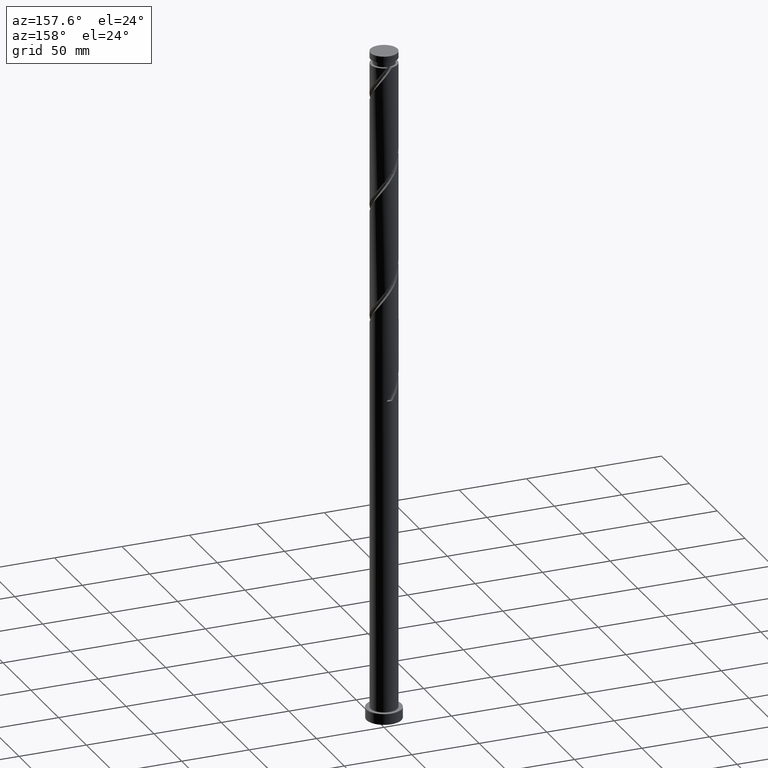
[diagram: clean part render]
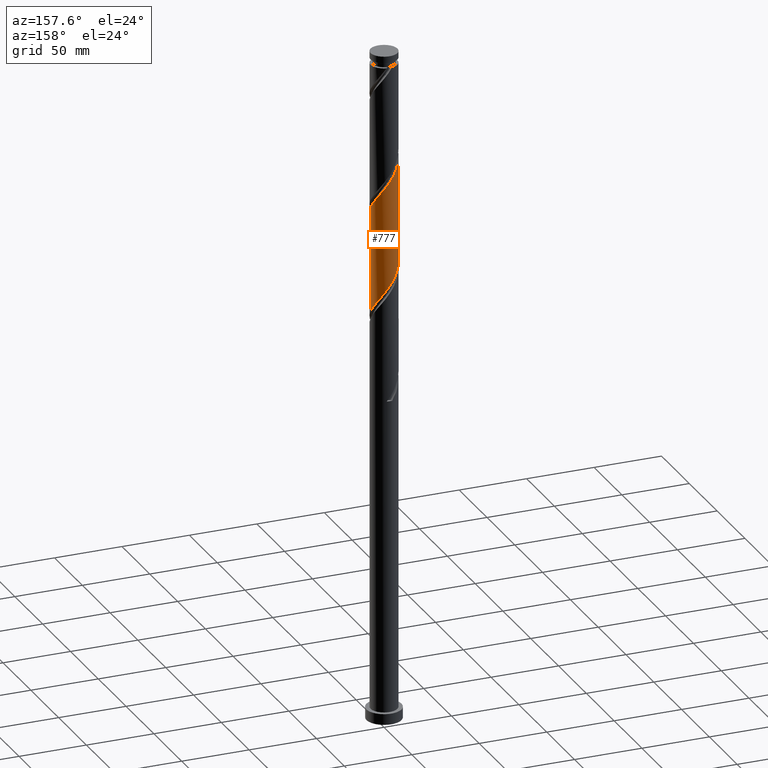
[diagram: same view with one face highlighted and labeled with its STEP entity id]
A machine part, auxiliary view. The second image highlights one B-rep face of the part: STEP entity #777.
In plain terms, the highlighted cylindrical surface (edge-blend (fillet) strip) has radius 10 mm, axis along (-0, -0, -1).
Its self-contained STEP definition (entity closure, byte-faithful):
#6 = ORIENTED_EDGE ( 'NONE', *, *, #1045, .T. ) ;
#14 = CARTESIAN_POINT ( 'NONE',  ( 2.878547858533179848, 9.627253911664571007, 401.3410913428222671 ) ) ;
#25 = CARTESIAN_POINT ( 'NONE',  ( -9.627253911664572783, 2.878547858533178072, 422.1744246761556951 ) ) ;
#37 = CARTESIAN_POINT ( 'NONE',  ( -9.999999999999996447, 0.01992653374259092253, 347.9820180996350700 ) ) ;
#50 = CARTESIAN_POINT ( 'NONE',  ( -8.880692098604958673, 4.701421434343251882, 419.5702580094890095 ) ) ;
#63 = CARTESIAN_POINT ( 'NONE',  ( -4.701421434343242112, 8.880692098604946239, 333.6327580094888958 ) ) ;
#102 = CARTESIAN_POINT ( 'NONE',  ( -0.9450533028279046732, 10.00384575592509329, 328.4244246761555246 ) ) ;
#110 = CARTESIAN_POINT ( 'NONE',  ( 9.999999999999998224, 8.834553925947433027E-15, 306.3417049874857980 ) ) ;
#180 = CARTESIAN_POINT ( 'NONE',  ( -10.00000000000001599, -2.997038547030246099E-15, 426.0279776981586224 ) ) ;
#187 = EDGE_CURVE ( 'NONE', #1579, #1929, #592, .T. ) ;
#215 = CARTESIAN_POINT ( 'NONE',  ( -5.522521727681131587, 8.336771183575200084, 334.9348413428221534 ) ) ;
#244 = CARTESIAN_POINT ( 'NONE',  ( 1.024759121313038035, 9.995995418006760502, 325.8202580094888390 ) ) ;
#295 = VERTEX_POINT ( 'NONE', #1896 ) ;
#307 =( BOUNDED_CURVE ( )  B_SPLINE_CURVE ( 2, ( #1123, #1789, #1148, #844, #1625, #1498, #337, #826, #646, #1314, #513, #815, #659, #992, #981, #14, #1487, #1304, #673, #1325, #1477, #1140, #1283, #1651, #359, #970, #1467, #1958, #1803, #50, #1933, #25, #684, #491, #1775 ),
 .UNSPECIFIED., .F., .T. ) 
 B_SPLINE_CURVE_WITH_KNOTS ( ( 3, 2, 2, 2, 2, 2, 2, 2, 2, 2, 2, 2, 2, 2, 2, 2, 2, 3 ),
 ( 0.4295286902180874833, 0.4296875000000000000, 0.4375000000000000000, 0.4453125000000000000, 0.4531250000000000000, 0.4609375000000000000, 0.4687500000000000000, 0.4765625000000000000, 0.4843750000000000000, 0.4921875000000000000, 0.5000000000000000000, 0.5078125000000000000, 0.5156250000000000000, 0.5234375000000000000, 0.5312500000000000000, 0.5390625000000000000, 0.5468750000000000000, 0.5545286902180873723 ),
 .UNSPECIFIED. ) 
 CURVE ( )  GEOMETRIC_REPRESENTATION_ITEM ( )  RATIONAL_B_SPLINE_CURVE ( ( 0.9089165573359372363, 0.9090019243628418844, 0.9090909090909334855, 0.9047133878838395926, 0.9090909090909334855, 0.9047133878838395926, 0.9090909090909334855, 0.9047133878838395926, 0.9090909090909334855, 0.9047133878838395926, 0.9090909090909334855, 0.9047133878838395926, 0.9090909090909334855, 0.9047133878838395926, 0.9090909090909334855, 0.9047133878838395926, 0.9090909090909334855, 0.9047133878838395926, 0.9090909090909334855, 0.9047133878838395926, 0.9090909090909334855, 0.9047133878838395926, 0.9090909090909334855, 0.9047133878838395926, 0.9090909090909334855, 0.9047133878838395926, 0.9090909090909334855, 0.9047133878838395926, 0.9090909090909334855, 0.9047133878838395926, 0.9090909090909334855, 0.9047133878838395926, 0.9090909090909334855, 0.9048023726119313048, 0.9089165573359370143 ) ) 
 REPRESENTATION_ITEM ( '' )  );
#337 = CARTESIAN_POINT ( 'NONE',  ( 9.223470908937407842, 3.863623220758685139, 389.6223413428221534 ) ) ;
#338 = CARTESIAN_POINT ( 'NONE',  ( 0.000000000000000000, 0.000000000000000000, 500.0000000000000000 ) ) ;
#359 = CARTESIAN_POINT ( 'NONE',  ( -5.588794693675229297, 8.292489003426412708, 413.0598413428222102 ) ) ;
#374 = AXIS2_PLACEMENT_3D ( 'NONE', #338, #1012, #1021 ) ;
#423 = CARTESIAN_POINT ( 'NONE',  ( 10.00000000000000178, 0.9647981492898172196, 307.6176850929016950 ) ) ;
#433 = CARTESIAN_POINT ( 'NONE',  ( -2.878547858533169634, 9.627253911664558572, 331.0285913428221534 ) ) ;
#452 = VERTEX_POINT ( 'NONE', #180 ) ;
#491 = CARTESIAN_POINT ( 'NONE',  ( -10.00000000000002309, 0.9647981492897956812, 424.7519975927426685 ) ) ;
#493 = CARTESIAN_POINT ( 'NONE',  ( -9.999999999999996447, -7.861634696127906080E-15, 348.0083716541523131 ) ) ;
#513 = CARTESIAN_POINT ( 'NONE',  ( 7.042831395995150956, 7.099191920746005025, 394.8306746761555246 ) ) ;
#527 = CARTESIAN_POINT ( 'NONE',  ( -9.223470908937390078, 3.863623220758681587, 342.7473413428221534 ) ) ;
#570 = CARTESIAN_POINT ( 'NONE',  ( 2.955190627113456259, 9.604004581993244472, 323.2160913428222102 ) ) ;
#580 = CARTESIAN_POINT ( 'NONE',  ( 5.588794693675227521, 8.292489003426394945, 319.3098413428222102 ) ) ;
#592 =( BOUNDED_CURVE ( )  B_SPLINE_CURVE ( 2, ( #1031, #37, #1983, #1500, #699, #1340, #527, #1508, #1175, #1827, #1013, #1671, #215, #63, #709, #433, #2039, #102, #911, #244, #1702, #570, #1722, #883, #580, #2057, #737, #1228, #1382, #1537, #1888, #1220, #746, #423, #110 ),
 .UNSPECIFIED., .F., .T. ) 
 B_SPLINE_CURVE_WITH_KNOTS ( ( 3, 2, 2, 2, 2, 2, 2, 2, 2, 2, 2, 2, 2, 2, 2, 2, 2, 3 ),
 ( 0.6795286902180870392, 0.6796875000000000000, 0.6875000000000000000, 0.6953125000000000000, 0.7031250000000000000, 0.7109375000000000000, 0.7187500000000000000, 0.7265625000000000000, 0.7343750000000000000, 0.7421875000000000000, 0.7500000000000000000, 0.7578125000000000000, 0.7656250000000000000, 0.7734375000000000000, 0.7812500000000000000, 0.7890625000000000000, 0.7968750000000000000, 0.8045286902180871502 ),
 .UNSPECIFIED. ) 
 CURVE ( )  GEOMETRIC_REPRESENTATION_ITEM ( )  RATIONAL_B_SPLINE_CURVE ( ( 0.9089165573359301309, 0.9090019243628350010, 0.9090909090909268242, 0.9047133878838330423, 0.9090909090909268242, 0.9047133878838330423, 0.9090909090909268242, 0.9047133878838330423, 0.9090909090909268242, 0.9047133878838330423, 0.9090909090909268242, 0.9047133878838330423, 0.9090909090909268242, 0.9047133878838330423, 0.9090909090909268242, 0.9047133878838330423, 0.9090909090909268242, 0.9047133878838330423, 0.9090909090909268242, 0.9047133878838330423, 0.9090909090909268242, 0.9047133878838330423, 0.9090909090909268242, 0.9047133878838330423, 0.9090909090909268242, 0.9047133878838330423, 0.9090909090909268242, 0.9047133878838330423, 0.9090909090909268242, 0.9047133878838330423, 0.9090909090909268242, 0.9047133878838330423, 0.9090909090909268242, 0.9048023726119248655, 0.9089165573359302419 ) ) 
 REPRESENTATION_ITEM ( '' )  );
#607 = CARTESIAN_POINT ( 'NONE',  ( 10.00000000000000178, 1.224646799147353454E-15, 500.0000000000000000 ) ) ;
#646 = CARTESIAN_POINT ( 'NONE',  ( 8.292489003426409155, 5.588794693675231073, 392.2265080094888958 ) ) ;
#659 = CARTESIAN_POINT ( 'NONE',  ( 5.522521727681144021, 8.336771183575212518, 397.4348413428222102 ) ) ;
#673 = CARTESIAN_POINT ( 'NONE',  ( -0.03985290924256019995, 9.999920586965943770, 405.2473413428222102 ) ) ;
#684 = CARTESIAN_POINT ( 'NONE',  ( -9.815549833794840140, 1.911800580680543371, 423.4765080094888958 ) ) ;
#699 = CARTESIAN_POINT ( 'NONE',  ( -9.800000000000002487, 1.989974874213248590, 345.3515080094886684 ) ) ;
#709 = CARTESIAN_POINT ( 'NONE',  ( -3.789984646438206539, 9.253973005134753294, 332.3306746761555246 ) ) ;
#737 = CARTESIAN_POINT ( 'NONE',  ( 7.099191920745997031, 7.042831395995134969, 316.7056746761555814 ) ) ;
#746 = CARTESIAN_POINT ( 'NONE',  ( 9.815549833794825929, 1.911800580680539596, 308.8931746761555246 ) ) ;
#777 = ADVANCED_FACE ( 'NONE', ( #1826 ), #1326, .T. ) ;
#815 = CARTESIAN_POINT ( 'NONE',  ( 6.343622021019031720, 7.792850268545469028, 396.1327580094888390 ) ) ;
#826 = CARTESIAN_POINT ( 'NONE',  ( 8.842937235881560554, 4.772055814403907803, 390.9244246761555814 ) ) ;
#844 = CARTESIAN_POINT ( 'NONE',  ( 9.995995418006774713, 1.024759121313039811, 385.7160913428223239 ) ) ;
#847 = VECTOR ( 'NONE', #1740, 1000.000000000000000 ) ;
#883 = CARTESIAN_POINT ( 'NONE',  ( 4.772055814403904250, 8.842937235881546343, 320.6119246761556383 ) ) ;
#911 = CARTESIAN_POINT ( 'NONE',  ( 0.03985290924256662537, 9.999920586965922453, 327.1223413428222102 ) ) ;
#914 = CARTESIAN_POINT ( 'NONE',  ( 9.999999999999998224, 8.834553925947433027E-15, 306.3417049874857412 ) ) ;
#951 = ORIENTED_EDGE ( 'NONE', *, *, #1745, .F. ) ;
#970 = CARTESIAN_POINT ( 'NONE',  ( -6.405533572946549903, 7.742040770971267527, 414.3619246761556383 ) ) ;
#974 = LINE ( 'NONE', #1298, #1563 ) ;
#981 = CARTESIAN_POINT ( 'NONE',  ( 3.789984646438214089, 9.253973005134763952, 400.0390080094888958 ) ) ;
#992 = CARTESIAN_POINT ( 'NONE',  ( 4.701421434343258099, 8.880692098604956897, 398.7369246761554678 ) ) ;
#1012 = DIRECTION ( 'NONE',  ( -0.000000000000000000, -0.000000000000000000, -1.000000000000000000 ) ) ;
#1013 = CARTESIAN_POINT ( 'NONE',  ( -7.042831395995134969, 7.099191920745997919, 337.5390080094888390 ) ) ;
#1021 = DIRECTION ( 'NONE',  ( -1.000000000000000000, 0.000000000000000000, 0.000000000000000000 ) ) ;
#1031 = CARTESIAN_POINT ( 'NONE',  ( -9.999999999999996447, -7.861634696127906080E-15, 348.0083716541523131 ) ) ;
#1045 = EDGE_CURVE ( 'NONE', #295, #1929, #1293, .T. ) ;
#1123 = CARTESIAN_POINT ( 'NONE',  ( 10.00000000000002132, 1.340839260406442326E-14, 384.3613110314921073 ) ) ;
#1140 = CARTESIAN_POINT ( 'NONE',  ( -2.955190627113461588, 9.604004581993260459, 409.1535913428222102 ) ) ;
#1148 = CARTESIAN_POINT ( 'NONE',  ( 9.999920586965943770, 0.03985290924256063017, 384.4140080094888390 ) ) ;
#1175 = CARTESIAN_POINT ( 'NONE',  ( -8.292489003426396721, 5.588794693675221303, 340.1431746761555814 ) ) ;
#1220 = CARTESIAN_POINT ( 'NONE',  ( 9.627253911664558572, 2.878547858533169634, 310.1952580094888958 ) ) ;
#1228 = CARTESIAN_POINT ( 'NONE',  ( 7.792850268545460146, 6.343622021019013957, 315.4035913428221534 ) ) ;
#1283 = CARTESIAN_POINT ( 'NONE',  ( -3.863623220758684251, 9.223470908937407842, 410.4556746761555246 ) ) ;
#1293 = LINE ( 'NONE', #607, #847 ) ;
#1298 = CARTESIAN_POINT ( 'NONE',  ( -10.00000000000000178, 0.000000000000000000, 500.0000000000000000 ) ) ;
#1304 = CARTESIAN_POINT ( 'NONE',  ( 0.9450533028279091141, 10.00384575592510927, 403.9452580094889527 ) ) ;
#1314 = CARTESIAN_POINT ( 'NONE',  ( 7.742040770971267527, 6.405533572946549903, 393.5285913428222102 ) ) ;
#1325 = CARTESIAN_POINT ( 'NONE',  ( -1.024759121313039367, 9.995995418006774713, 406.5494246761555814 ) ) ;
#1326 = CYLINDRICAL_SURFACE ( 'NONE', #374, 10.00000000000000178 ) ;
#1340 = CARTESIAN_POINT ( 'NONE',  ( -9.604004581993240919, 2.955190627113458923, 344.0494246761555814 ) ) ;
#1382 = CARTESIAN_POINT ( 'NONE',  ( 8.336771183575201860, 5.522521727681130699, 314.1015080094888958 ) ) ;
#1467 = CARTESIAN_POINT ( 'NONE',  ( -7.099191920746007689, 7.042831395995149180, 415.6640080094888958 ) ) ;
#1477 = CARTESIAN_POINT ( 'NONE',  ( -1.989974874213247480, 9.800000000000013145, 407.8515080094888390 ) ) ;
#1487 = CARTESIAN_POINT ( 'NONE',  ( 1.911800580680548922, 9.815549833794836587, 402.6431746761556383 ) ) ;
#1498 = CARTESIAN_POINT ( 'NONE',  ( 9.604004581993264011, 2.955190627113456703, 388.3202580094890095 ) ) ;
#1500 = CARTESIAN_POINT ( 'NONE',  ( -9.995995418006760502, 1.024759121313037813, 346.6535913428222102 ) ) ;
#1508 = CARTESIAN_POINT ( 'NONE',  ( -8.842937235881546343, 4.772055814403903362, 341.4452580094888390 ) ) ;
#1537 = CARTESIAN_POINT ( 'NONE',  ( 8.880692098604946239, 4.701421434343244776, 312.7994246761555246 ) ) ;
#1563 = VECTOR ( 'NONE', #1924, 1000.000000000000000 ) ;
#1579 = VERTEX_POINT ( 'NONE', #493 ) ;
#1625 = CARTESIAN_POINT ( 'NONE',  ( 9.800000000000013145, 1.989974874213247702, 387.0181746761555814 ) ) ;
#1651 = CARTESIAN_POINT ( 'NONE',  ( -4.772055814403910468, 8.842937235881558777, 411.7577580094888958 ) ) ;
#1671 = CARTESIAN_POINT ( 'NONE',  ( -6.343622021019019286, 7.792850268545455705, 336.2369246761556383 ) ) ;
#1688 = EDGE_CURVE ( 'NONE', #452, #1579, #974, .T. ) ;
#1702 = CARTESIAN_POINT ( 'NONE',  ( 1.989974874213250366, 9.800000000000002487, 324.5181746761555246 ) ) ;
#1722 = CARTESIAN_POINT ( 'NONE',  ( 3.863623220758683807, 9.223470908937388302, 321.9140080094888958 ) ) ;
#1740 = DIRECTION ( 'NONE',  ( -0.000000000000000000, -0.000000000000000000, -1.000000000000000000 ) ) ;
#1745 = EDGE_CURVE ( 'NONE', #295, #452, #307, .T. ) ;
#1775 = CARTESIAN_POINT ( 'NONE',  ( -10.00000000000001599, -2.997038547030246099E-15, 426.0279776981586224 ) ) ;
#1779 = EDGE_LOOP ( 'NONE', ( #951, #6, #2069, #1943 ) ) ;
#1789 = CARTESIAN_POINT ( 'NONE',  ( 10.00000000000001954, 0.01992653374264003949, 384.3876645860091799 ) ) ;
#1803 = CARTESIAN_POINT ( 'NONE',  ( -8.336771183575214295, 5.522521727681143133, 418.2681746761555814 ) ) ;
#1826 = FACE_OUTER_BOUND ( 'NONE', #1779, .T. ) ;
#1827 = CARTESIAN_POINT ( 'NONE',  ( -7.742040770971249763, 6.405533572946541021, 338.8410913428221534 ) ) ;
#1888 = CARTESIAN_POINT ( 'NONE',  ( 9.253973005134753294, 3.789984646438202542, 311.4973413428221534 ) ) ;
#1896 = CARTESIAN_POINT ( 'NONE',  ( 10.00000000000002132, 1.340839260406442326E-14, 384.3613110314921073 ) ) ;
#1924 = DIRECTION ( 'NONE',  ( -0.000000000000000000, -0.000000000000000000, -1.000000000000000000 ) ) ;
#1929 = VERTEX_POINT ( 'NONE', #914 ) ;
#1933 = CARTESIAN_POINT ( 'NONE',  ( -9.253973005134763952, 3.789984646438214089, 420.8723413428222671 ) ) ;
#1943 = ORIENTED_EDGE ( 'NONE', *, *, #1688, .F. ) ;
#1958 = CARTESIAN_POINT ( 'NONE',  ( -7.792850268545467252, 6.343622021019032609, 416.9660913428222102 ) ) ;
#1983 = CARTESIAN_POINT ( 'NONE',  ( -9.999920586965922453, 0.03985290924256724987, 347.9556746761554678 ) ) ;
#2039 = CARTESIAN_POINT ( 'NONE',  ( -1.911800580680538042, 9.815549833794827705, 329.7265080094888958 ) ) ;
#2057 = CARTESIAN_POINT ( 'NONE',  ( 6.405533572946541909, 7.742040770971249763, 318.0077580094888390 ) ) ;
#2069 = ORIENTED_EDGE ( 'NONE', *, *, #187, .F. ) ;